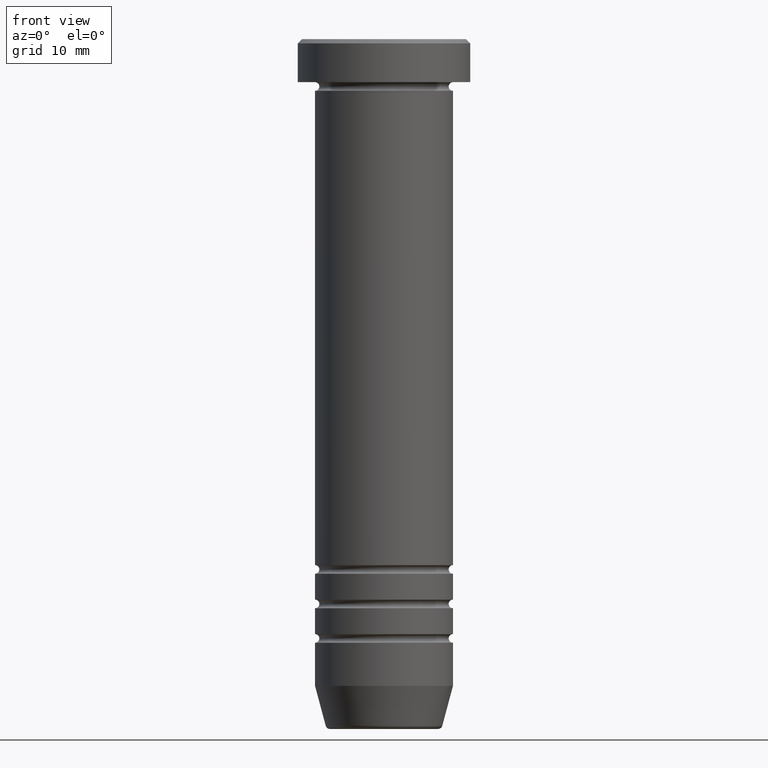
[diagram: clean part render]
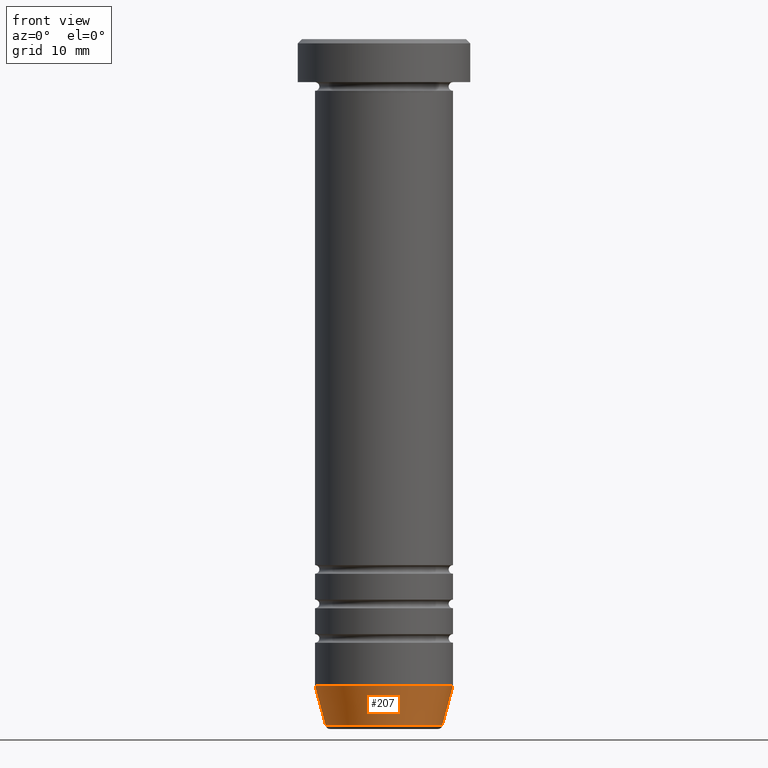
[diagram: same view with one face highlighted and labeled with its STEP entity id]
A machine part, front view. The second image highlights one B-rep face of the part: STEP entity #207.
In plain terms, the highlighted conical surface has half-angle 15 deg.
Its self-contained STEP definition (entity closure, byte-faithful):
#9 = ORIENTED_EDGE ( 'NONE', *, *, #424, .F. ) ;
#16 = CARTESIAN_POINT ( 'NONE',  ( 6.660254037844381081, 0.000000000000000000, -79.99999999999998579 ) ) ;
#29 = CARTESIAN_POINT ( 'NONE',  ( -6.759553456999437770, 9.037619948979306213E-16, -79.62940952255125637 ) ) ;
#55 = CARTESIAN_POINT ( 'NONE',  ( 0.000000000000000000, 0.000000000000000000, -74.99999999999998579 ) ) ;
#95 = DIRECTION ( 'NONE',  ( -0.2588190451025214611, 3.169619151431774186E-17, 0.9659258262890679791 ) ) ;
#96 = ORIENTED_EDGE ( 'NONE', *, *, #450, .T. ) ;
#126 = VERTEX_POINT ( 'NONE', #872 ) ;
#173 = CIRCLE ( 'NONE', #608, 6.759553456999436882 ) ;
#178 = LINE ( 'NONE', #507, #876 ) ;
#207 = ADVANCED_FACE ( 'NONE', ( #479 ), #550, .T. ) ;
#237 = DIRECTION ( 'NONE',  ( -0.000000000000000000, -0.000000000000000000, 1.000000000000000000 ) ) ;
#267 = DIRECTION ( 'NONE',  ( 0.2588190451025214611, 0.000000000000000000, 0.9659258262890679791 ) ) ;
#286 = CARTESIAN_POINT ( 'NONE',  ( 6.759553456999437770, 0.000000000000000000, -79.62940952255125637 ) ) ;
#294 = AXIS2_PLACEMENT_3D ( 'NONE', #388, #721, #967 ) ;
#388 = CARTESIAN_POINT ( 'NONE',  ( 0.000000000000000000, 0.000000000000000000, -79.99999999999998579 ) ) ;
#394 = VERTEX_POINT ( 'NONE', #750 ) ;
#424 = EDGE_CURVE ( 'NONE', #1058, #126, #178, .T. ) ;
#450 = EDGE_CURVE ( 'NONE', #1012, #394, #759, .T. ) ;
#479 = FACE_OUTER_BOUND ( 'NONE', #971, .T. ) ;
#507 = CARTESIAN_POINT ( 'NONE',  ( -6.660254037844381081, 8.156458788954356817E-16, -79.99999999999998579 ) ) ;
#522 = DIRECTION ( 'NONE',  ( -0.000000000000000000, -0.000000000000000000, 1.000000000000000000 ) ) ;
#526 = CARTESIAN_POINT ( 'NONE',  ( 0.000000000000000000, 0.000000000000000000, -79.62940952255125637 ) ) ;
#539 = CIRCLE ( 'NONE', #846, 8.000000000000000000 ) ;
#550 = CONICAL_SURFACE ( 'NONE', #294, 6.660254037844381081, 0.2617993877991502405 ) ;
#608 = AXIS2_PLACEMENT_3D ( 'NONE', #526, #522, #848 ) ;
#628 = EDGE_CURVE ( 'NONE', #126, #394, #539, .T. ) ;
#631 = DIRECTION ( 'NONE',  ( 1.000000000000000000, 0.000000000000000000, 0.000000000000000000 ) ) ;
#682 = ORIENTED_EDGE ( 'NONE', *, *, #1050, .T. ) ;
#721 = DIRECTION ( 'NONE',  ( -0.000000000000000000, -0.000000000000000000, 1.000000000000000000 ) ) ;
#750 = CARTESIAN_POINT ( 'NONE',  ( 8.000000000000000000, 0.000000000000000000, -74.99999999999998579 ) ) ;
#759 = LINE ( 'NONE', #16, #895 ) ;
#846 = AXIS2_PLACEMENT_3D ( 'NONE', #55, #237, #631 ) ;
#848 = DIRECTION ( 'NONE',  ( -1.000000000000000000, 0.000000000000000000, 0.000000000000000000 ) ) ;
#872 = CARTESIAN_POINT ( 'NONE',  ( -8.000000000000000000, 9.797174393178825657E-16, -74.99999999999998579 ) ) ;
#876 = VECTOR ( 'NONE', #95, 1000.000000000000114 ) ;
#895 = VECTOR ( 'NONE', #267, 1000.000000000000114 ) ;
#942 = ORIENTED_EDGE ( 'NONE', *, *, #628, .F. ) ;
#967 = DIRECTION ( 'NONE',  ( 1.000000000000000000, 0.000000000000000000, 0.000000000000000000 ) ) ;
#971 = EDGE_LOOP ( 'NONE', ( #9, #682, #96, #942 ) ) ;
#1012 = VERTEX_POINT ( 'NONE', #286 ) ;
#1050 = EDGE_CURVE ( 'NONE', #1058, #1012, #173, .T. ) ;
#1058 = VERTEX_POINT ( 'NONE', #29 ) ;